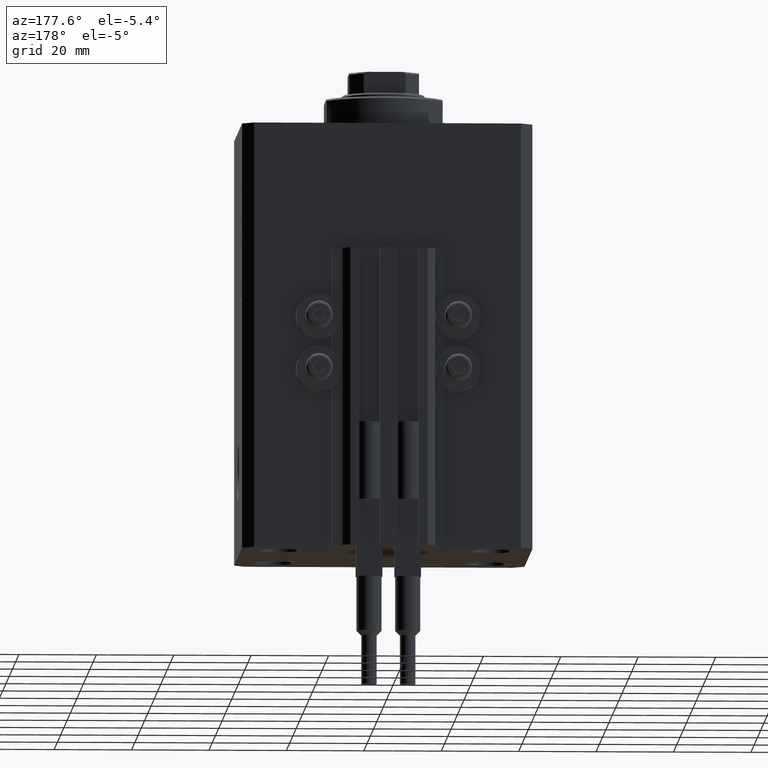
[diagram: clean part render]
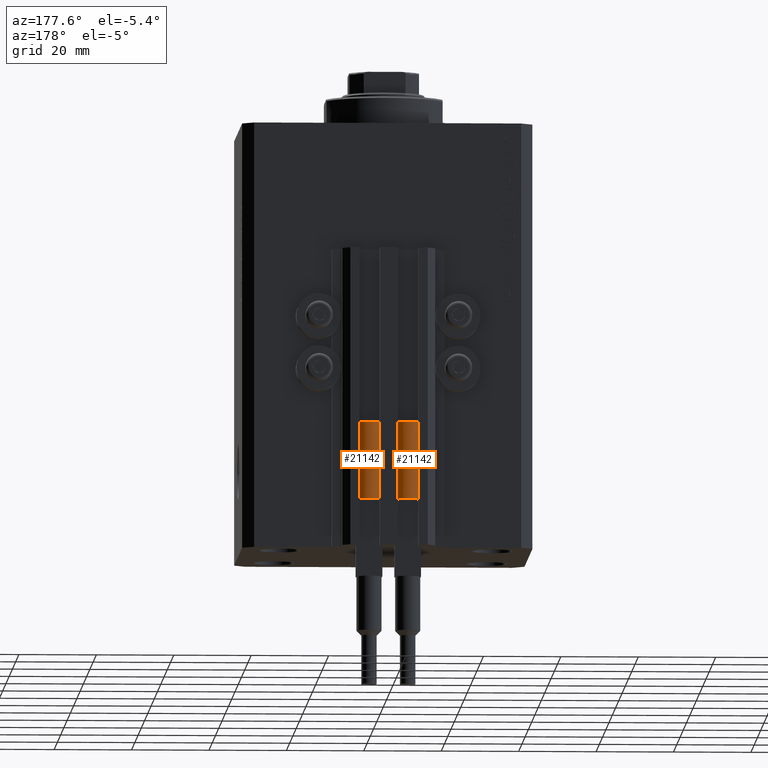
[diagram: same view with one multi-face feature highlighted, each face labeled with its STEP entity id]
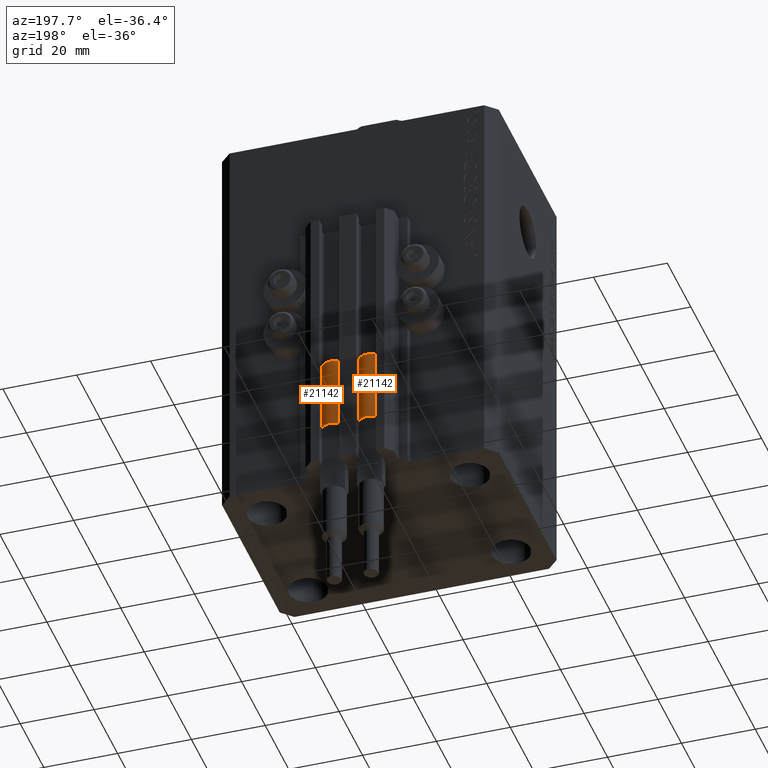
[diagram: same view with one multi-face feature highlighted, each face labeled with its STEP entity id]
A machine part, auxiliary view. The highlighted faces form ONE feature: a constant-radius fillet chain: 2 tangent blend faces with common blend radius 3.4 mm. The faces share edges in the B-rep.
A second angle (auxiliary view) of the same feature is appended — it is thin or edge-on in the first view.
Their STEP definitions:
[1] entity #21142 (Cylinder):
#159 = AXIS2_PLACEMENT_3D ( 'NONE', #45374, #8473, #26693 ) ;
#1347 = ORIENTED_EDGE ( 'NONE', *, *, #35841, .F. ) ;
#1766 = DIRECTION ( 'NONE',  ( 1.000000000000000000, 0.000000000000000000, 0.000000000000000000 ) ) ;
#2004 = VERTEX_POINT ( 'NONE', #29014 ) ;
#2337 = EDGE_LOOP ( 'NONE', ( #1347, #23082, #34524, #22426, #34345, #42280 ) ) ;
#4080 = CIRCLE ( 'NONE', #20386, 3.400000000000000355 ) ;
#4732 = CARTESIAN_POINT ( 'NONE',  ( 0.000000000000000000, 0.000000000000000000, 0.000000000000000000 ) ) ;
#7033 = CARTESIAN_POINT ( 'NONE',  ( 3.400000000000000355, 4.163799117101001052E-16, 0.000000000000000000 ) ) ;
#7538 = AXIS2_PLACEMENT_3D ( 'NONE', #34803, #23887, #1766 ) ;
#8473 = DIRECTION ( 'NONE',  ( -0.000000000000000000, -0.000000000000000000, -1.000000000000000000 ) ) ;
#9876 = DIRECTION ( 'NONE',  ( 0.000000000000000000, 0.000000000000000000, 1.000000000000000000 ) ) ;
#11879 = FACE_OUTER_BOUND ( 'NONE', #2337, .T. ) ;
#12870 = EDGE_CURVE ( 'NONE', #34869, #2004, #46377, .T. ) ;
#13063 = DIRECTION ( 'NONE',  ( 1.000000000000000000, 0.000000000000000000, 0.000000000000000000 ) ) ;
#13194 = LINE ( 'NONE', #25071, #46262 ) ;
#13853 = DIRECTION ( 'NONE',  ( -0.000000000000000000, -0.000000000000000000, -1.000000000000000000 ) ) ;
#15673 = DIRECTION ( 'NONE',  ( 1.000000000000000000, 0.000000000000000000, 0.000000000000000000 ) ) ;
#18289 = VERTEX_POINT ( 'NONE', #34221 ) ;
#18544 = CARTESIAN_POINT ( 'NONE',  ( 3.400000000000000355, 0.000000000000000000, 20.00000000000000000 ) ) ;
#19613 = EDGE_CURVE ( 'NONE', #18289, #34869, #4080, .T. ) ;
#20025 = VECTOR ( 'NONE', #13853, 1000.000000000000000 ) ;
#20386 = AXIS2_PLACEMENT_3D ( 'NONE', #35253, #35482, #38402 ) ;
#21032 = VERTEX_POINT ( 'NONE', #7033 ) ;
#21116 = CIRCLE ( 'NONE', #21914, 3.400000000000000355 ) ;
#21142 = ADVANCED_FACE ( 'NONE', ( #11879 ), #26927, .T. ) ;
#21914 = AXIS2_PLACEMENT_3D ( 'NONE', #4732, #34368, #15673 ) ;
#22426 = ORIENTED_EDGE ( 'NONE', *, *, #19613, .F. ) ;
#23082 = ORIENTED_EDGE ( 'NONE', *, *, #40523, .F. ) ;
#23887 = DIRECTION ( 'NONE',  ( 0.000000000000000000, 0.000000000000000000, 1.000000000000000000 ) ) ;
#24386 = EDGE_CURVE ( 'NONE', #37044, #21032, #21116, .T. ) ;
#24538 = VERTEX_POINT ( 'NONE', #18544 ) ;
#25071 = CARTESIAN_POINT ( 'NONE',  ( 3.400000000000000355, 4.163799117101001052E-16, 20.00000000000000000 ) ) ;
#25449 = AXIS2_PLACEMENT_3D ( 'NONE', #31741, #9876, #13063 ) ;
#26693 = DIRECTION ( 'NONE',  ( -1.000000000000000000, 0.000000000000000000, 0.000000000000000000 ) ) ;
#26927 = CYLINDRICAL_SURFACE ( 'NONE', #159, 3.400000000000000355 ) ;
#28006 = DIRECTION ( 'NONE',  ( -0.000000000000000000, -0.000000000000000000, -1.000000000000000000 ) ) ;
#29014 = CARTESIAN_POINT ( 'NONE',  ( 3.051229260478471428, -1.500000000000000000, 20.00000000000000000 ) ) ;
#31741 = CARTESIAN_POINT ( 'NONE',  ( 0.000000000000000000, 0.000000000000000000, 20.00000000000000000 ) ) ;
#34221 = CARTESIAN_POINT ( 'NONE',  ( -3.399999999999999467, -4.915049848600952119E-16, 20.00000000000000000 ) ) ;
#34345 = ORIENTED_EDGE ( 'NONE', *, *, #42948, .T. ) ;
#34368 = DIRECTION ( 'NONE',  ( 0.000000000000000000, 0.000000000000000000, 1.000000000000000000 ) ) ;
#34524 = ORIENTED_EDGE ( 'NONE', *, *, #12870, .F. ) ;
#34803 = CARTESIAN_POINT ( 'NONE',  ( 0.000000000000000000, 0.000000000000000000, 20.00000000000000000 ) ) ;
#34869 = VERTEX_POINT ( 'NONE', #36283 ) ;
#35253 = CARTESIAN_POINT ( 'NONE',  ( 0.000000000000000000, 0.000000000000000000, 20.00000000000000000 ) ) ;
#35482 = DIRECTION ( 'NONE',  ( 0.000000000000000000, 0.000000000000000000, 1.000000000000000000 ) ) ;
#35841 = EDGE_CURVE ( 'NONE', #24538, #21032, #13194, .T. ) ;
#36283 = CARTESIAN_POINT ( 'NONE',  ( -3.051229260478471428, -1.500000000000000000, 20.00000000000000000 ) ) ;
#37044 = VERTEX_POINT ( 'NONE', #38332 ) ;
#38332 = CARTESIAN_POINT ( 'NONE',  ( -3.400000000000000355, 0.000000000000000000, 0.000000000000000000 ) ) ;
#38402 = DIRECTION ( 'NONE',  ( 1.000000000000000000, 0.000000000000000000, 0.000000000000000000 ) ) ;
#40067 = CIRCLE ( 'NONE', #7538, 3.400000000000000355 ) ;
#40523 = EDGE_CURVE ( 'NONE', #2004, #24538, #40067, .T. ) ;
#42280 = ORIENTED_EDGE ( 'NONE', *, *, #24386, .T. ) ;
#42948 = EDGE_CURVE ( 'NONE', #18289, #37044, #47117, .T. ) ;
#45374 = CARTESIAN_POINT ( 'NONE',  ( 0.000000000000000000, 0.000000000000000000, 20.00000000000000000 ) ) ;
#46262 = VECTOR ( 'NONE', #28006, 1000.000000000000000 ) ;
#46377 = CIRCLE ( 'NONE', #25449, 3.400000000000000355 ) ;
#47117 = LINE ( 'NONE', #47603, #20025 ) ;
#47603 = CARTESIAN_POINT ( 'NONE',  ( -3.400000000000000355, 0.000000000000000000, 20.00000000000000000 ) ) ;
[2] entity #21142 (Cylinder):
#159 = AXIS2_PLACEMENT_3D ( 'NONE', #45374, #8473, #26693 ) ;
#1347 = ORIENTED_EDGE ( 'NONE', *, *, #35841, .F. ) ;
#1766 = DIRECTION ( 'NONE',  ( 1.000000000000000000, 0.000000000000000000, 0.000000000000000000 ) ) ;
#2004 = VERTEX_POINT ( 'NONE', #29014 ) ;
#2337 = EDGE_LOOP ( 'NONE', ( #1347, #23082, #34524, #22426, #34345, #42280 ) ) ;
#4080 = CIRCLE ( 'NONE', #20386, 3.400000000000000355 ) ;
#4732 = CARTESIAN_POINT ( 'NONE',  ( 0.000000000000000000, 0.000000000000000000, 0.000000000000000000 ) ) ;
#7033 = CARTESIAN_POINT ( 'NONE',  ( 3.400000000000000355, 4.163799117101001052E-16, 0.000000000000000000 ) ) ;
#7538 = AXIS2_PLACEMENT_3D ( 'NONE', #34803, #23887, #1766 ) ;
#8473 = DIRECTION ( 'NONE',  ( -0.000000000000000000, -0.000000000000000000, -1.000000000000000000 ) ) ;
#9876 = DIRECTION ( 'NONE',  ( 0.000000000000000000, 0.000000000000000000, 1.000000000000000000 ) ) ;
#11879 = FACE_OUTER_BOUND ( 'NONE', #2337, .T. ) ;
#12870 = EDGE_CURVE ( 'NONE', #34869, #2004, #46377, .T. ) ;
#13063 = DIRECTION ( 'NONE',  ( 1.000000000000000000, 0.000000000000000000, 0.000000000000000000 ) ) ;
#13194 = LINE ( 'NONE', #25071, #46262 ) ;
#13853 = DIRECTION ( 'NONE',  ( -0.000000000000000000, -0.000000000000000000, -1.000000000000000000 ) ) ;
#15673 = DIRECTION ( 'NONE',  ( 1.000000000000000000, 0.000000000000000000, 0.000000000000000000 ) ) ;
#18289 = VERTEX_POINT ( 'NONE', #34221 ) ;
#18544 = CARTESIAN_POINT ( 'NONE',  ( 3.400000000000000355, 0.000000000000000000, 20.00000000000000000 ) ) ;
#19613 = EDGE_CURVE ( 'NONE', #18289, #34869, #4080, .T. ) ;
#20025 = VECTOR ( 'NONE', #13853, 1000.000000000000000 ) ;
#20386 = AXIS2_PLACEMENT_3D ( 'NONE', #35253, #35482, #38402 ) ;
#21032 = VERTEX_POINT ( 'NONE', #7033 ) ;
#21116 = CIRCLE ( 'NONE', #21914, 3.400000000000000355 ) ;
#21142 = ADVANCED_FACE ( 'NONE', ( #11879 ), #26927, .T. ) ;
#21914 = AXIS2_PLACEMENT_3D ( 'NONE', #4732, #34368, #15673 ) ;
#22426 = ORIENTED_EDGE ( 'NONE', *, *, #19613, .F. ) ;
#23082 = ORIENTED_EDGE ( 'NONE', *, *, #40523, .F. ) ;
#23887 = DIRECTION ( 'NONE',  ( 0.000000000000000000, 0.000000000000000000, 1.000000000000000000 ) ) ;
#24386 = EDGE_CURVE ( 'NONE', #37044, #21032, #21116, .T. ) ;
#24538 = VERTEX_POINT ( 'NONE', #18544 ) ;
#25071 = CARTESIAN_POINT ( 'NONE',  ( 3.400000000000000355, 4.163799117101001052E-16, 20.00000000000000000 ) ) ;
#25449 = AXIS2_PLACEMENT_3D ( 'NONE', #31741, #9876, #13063 ) ;
#26693 = DIRECTION ( 'NONE',  ( -1.000000000000000000, 0.000000000000000000, 0.000000000000000000 ) ) ;
#26927 = CYLINDRICAL_SURFACE ( 'NONE', #159, 3.400000000000000355 ) ;
#28006 = DIRECTION ( 'NONE',  ( -0.000000000000000000, -0.000000000000000000, -1.000000000000000000 ) ) ;
#29014 = CARTESIAN_POINT ( 'NONE',  ( 3.051229260478471428, -1.500000000000000000, 20.00000000000000000 ) ) ;
#31741 = CARTESIAN_POINT ( 'NONE',  ( 0.000000000000000000, 0.000000000000000000, 20.00000000000000000 ) ) ;
#34221 = CARTESIAN_POINT ( 'NONE',  ( -3.399999999999999467, -4.915049848600952119E-16, 20.00000000000000000 ) ) ;
#34345 = ORIENTED_EDGE ( 'NONE', *, *, #42948, .T. ) ;
#34368 = DIRECTION ( 'NONE',  ( 0.000000000000000000, 0.000000000000000000, 1.000000000000000000 ) ) ;
#34524 = ORIENTED_EDGE ( 'NONE', *, *, #12870, .F. ) ;
#34803 = CARTESIAN_POINT ( 'NONE',  ( 0.000000000000000000, 0.000000000000000000, 20.00000000000000000 ) ) ;
#34869 = VERTEX_POINT ( 'NONE', #36283 ) ;
#35253 = CARTESIAN_POINT ( 'NONE',  ( 0.000000000000000000, 0.000000000000000000, 20.00000000000000000 ) ) ;
#35482 = DIRECTION ( 'NONE',  ( 0.000000000000000000, 0.000000000000000000, 1.000000000000000000 ) ) ;
#35841 = EDGE_CURVE ( 'NONE', #24538, #21032, #13194, .T. ) ;
#36283 = CARTESIAN_POINT ( 'NONE',  ( -3.051229260478471428, -1.500000000000000000, 20.00000000000000000 ) ) ;
#37044 = VERTEX_POINT ( 'NONE', #38332 ) ;
#38332 = CARTESIAN_POINT ( 'NONE',  ( -3.400000000000000355, 0.000000000000000000, 0.000000000000000000 ) ) ;
#38402 = DIRECTION ( 'NONE',  ( 1.000000000000000000, 0.000000000000000000, 0.000000000000000000 ) ) ;
#40067 = CIRCLE ( 'NONE', #7538, 3.400000000000000355 ) ;
#40523 = EDGE_CURVE ( 'NONE', #2004, #24538, #40067, .T. ) ;
#42280 = ORIENTED_EDGE ( 'NONE', *, *, #24386, .T. ) ;
#42948 = EDGE_CURVE ( 'NONE', #18289, #37044, #47117, .T. ) ;
#45374 = CARTESIAN_POINT ( 'NONE',  ( 0.000000000000000000, 0.000000000000000000, 20.00000000000000000 ) ) ;
#46262 = VECTOR ( 'NONE', #28006, 1000.000000000000000 ) ;
#46377 = CIRCLE ( 'NONE', #25449, 3.400000000000000355 ) ;
#47117 = LINE ( 'NONE', #47603, #20025 ) ;
#47603 = CARTESIAN_POINT ( 'NONE',  ( -3.400000000000000355, 0.000000000000000000, 20.00000000000000000 ) ) ;